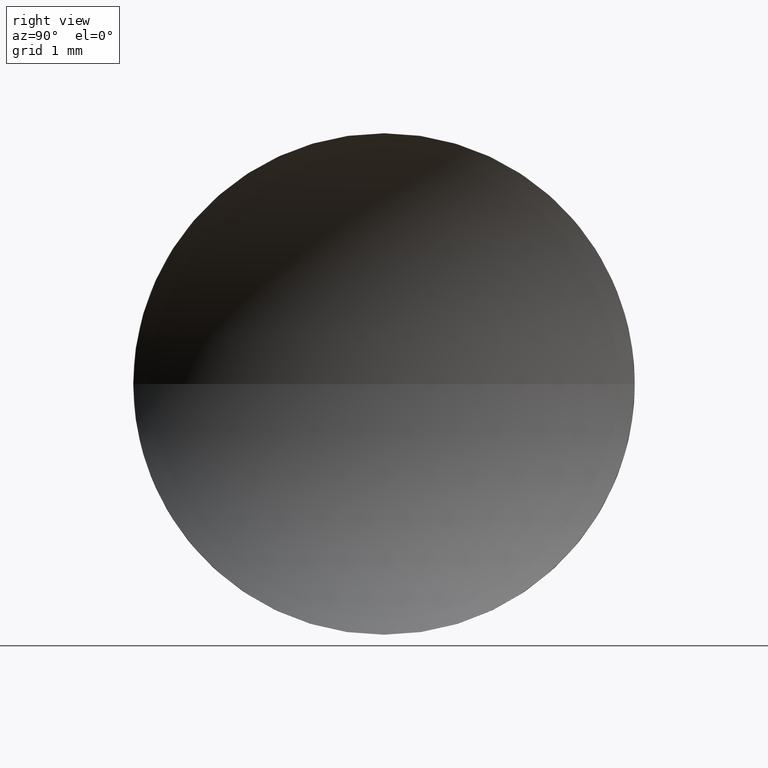
[diagram: clean part render]
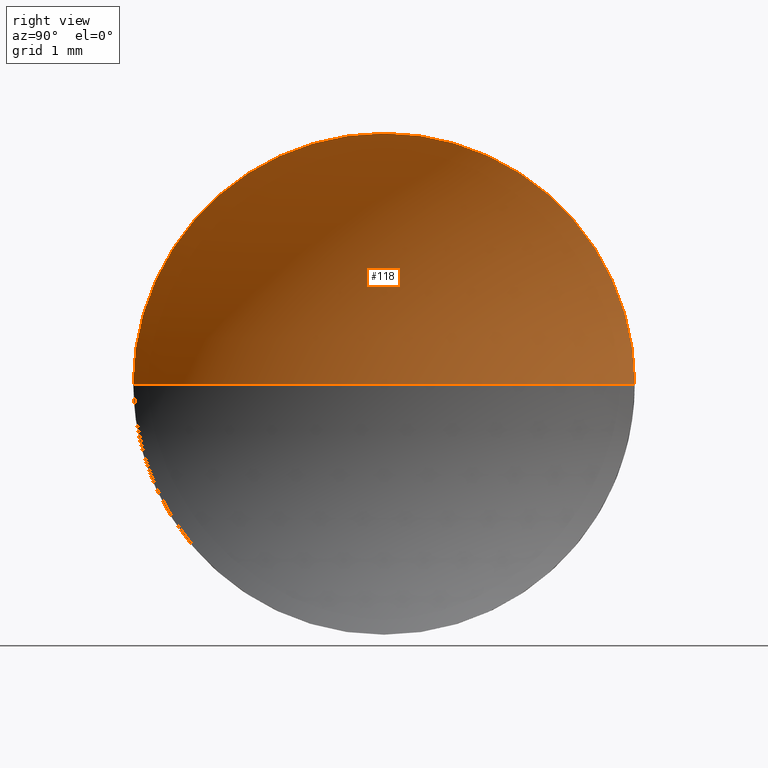
[diagram: same view with one face highlighted and labeled with its STEP entity id]
A machine part, right view. The second image highlights one B-rep face of the part: STEP entity #118.
In plain terms, the highlighted spherical surface has radius 4.594 mm.
Its self-contained STEP definition (entity closure, byte-faithful):
#13 = AXIS2_PLACEMENT_3D ( 'NONE', #167, #173, #72 ) ;
#14 = SPHERICAL_SURFACE ( 'NONE', #13, 4.593999999999996800 ) ;
#15 = AXIS2_PLACEMENT_3D ( 'NONE', #84, #157, #34 ) ;
#22 = CIRCLE ( 'NONE', #154, 4.593999999999995900 ) ;
#25 = CARTESIAN_POINT ( 'NONE',  ( 24.45087548928661300, 16.18112609140303700, 3.857637417314161200E-016 ) ) ;
#26 = VERTEX_POINT ( 'NONE', #183 ) ;
#32 = DIRECTION ( 'NONE',  ( 0.0000000000000000000, -1.224646799147353200E-016, 1.000000000000000000 ) ) ;
#34 = DIRECTION ( 'NONE',  ( 0.0000000000000000000, 0.0000000000000000000, 1.000000000000000000 ) ) ;
#37 = CARTESIAN_POINT ( 'NONE',  ( 24.45087548928661300, 13.03112609140304000, 0.0000000000000000000 ) ) ;
#43 = AXIS2_PLACEMENT_3D ( 'NONE', #87, #97, #115 ) ;
#45 = VERTEX_POINT ( 'NONE', #108 ) ;
#48 = EDGE_CURVE ( 'NONE', #114, #45, #22, .T. ) ;
#49 = DIRECTION ( 'NONE',  ( 0.0000000000000000000, -1.000000000000000000, -1.224646799147353500E-016 ) ) ;
#61 = CIRCLE ( 'NONE', #135, 3.149999999999998100 ) ;
#72 = DIRECTION ( 'NONE',  ( 0.0000000000000000000, -1.000000000000000000, 0.0000000000000000000 ) ) ;
#77 = FACE_OUTER_BOUND ( 'NONE', #139, .T. ) ;
#79 = VERTEX_POINT ( 'NONE', #138 ) ;
#80 = EDGE_CURVE ( 'NONE', #79, #45, #156, .T. ) ;
#84 = CARTESIAN_POINT ( 'NONE',  ( 24.45087548928661300, 13.03112609140304000, 0.0000000000000000000 ) ) ;
#85 = ORIENTED_EDGE ( 'NONE', *, *, #161, .F. ) ;
#87 = CARTESIAN_POINT ( 'NONE',  ( 27.79487548928660700, 13.03112609140304000, 0.0000000000000000000 ) ) ;
#97 = DIRECTION ( 'NONE',  ( 0.0000000000000000000, 0.0000000000000000000, -1.000000000000000000 ) ) ;
#99 = DIRECTION ( 'NONE',  ( 0.0000000000000000000, 0.0000000000000000000, 1.000000000000000000 ) ) ;
#108 = CARTESIAN_POINT ( 'NONE',  ( 23.20087548928660900, 13.03112609140304000, 0.0000000000000000000 ) ) ;
#114 = VERTEX_POINT ( 'NONE', #25 ) ;
#115 = DIRECTION ( 'NONE',  ( -1.000000000000000000, 0.0000000000000000000, 0.0000000000000000000 ) ) ;
#118 = ADVANCED_FACE ( 'NONE', ( #77 ), #14, .F. ) ;
#121 = CARTESIAN_POINT ( 'NONE',  ( 27.79487548928660700, 13.03112609140304000, 0.0000000000000000000 ) ) ;
#125 = DIRECTION ( 'NONE',  ( -1.000000000000000000, -0.0000000000000000000, -0.0000000000000000000 ) ) ;
#126 = ORIENTED_EDGE ( 'NONE', *, *, #48, .F. ) ;
#128 = ORIENTED_EDGE ( 'NONE', *, *, #80, .T. ) ;
#129 = CIRCLE ( 'NONE', #15, 3.149999999999998100 ) ;
#135 = AXIS2_PLACEMENT_3D ( 'NONE', #37, #125, #99 ) ;
#138 = CARTESIAN_POINT ( 'NONE',  ( 24.45087548928661300, 9.881126091403041700, 0.0000000000000000000 ) ) ;
#139 = EDGE_LOOP ( 'NONE', ( #126, #152, #85, #128 ) ) ;
#152 = ORIENTED_EDGE ( 'NONE', *, *, #169, .F. ) ;
#154 = AXIS2_PLACEMENT_3D ( 'NONE', #121, #32, #49 ) ;
#156 = CIRCLE ( 'NONE', #43, 4.593999999999997600 ) ;
#157 = DIRECTION ( 'NONE',  ( -1.000000000000000000, -0.0000000000000000000, -0.0000000000000000000 ) ) ;
#161 = EDGE_CURVE ( 'NONE', #79, #26, #61, .T. ) ;
#167 = CARTESIAN_POINT ( 'NONE',  ( 27.79487548928660700, 13.03112609140304000, 0.0000000000000000000 ) ) ;
#169 = EDGE_CURVE ( 'NONE', #26, #114, #129, .T. ) ;
#173 = DIRECTION ( 'NONE',  ( 0.0000000000000000000, 0.0000000000000000000, 1.000000000000000000 ) ) ;
#183 = CARTESIAN_POINT ( 'NONE',  ( 24.45087548928661300, 13.03112609140304000, 3.149999999999998100 ) ) ;